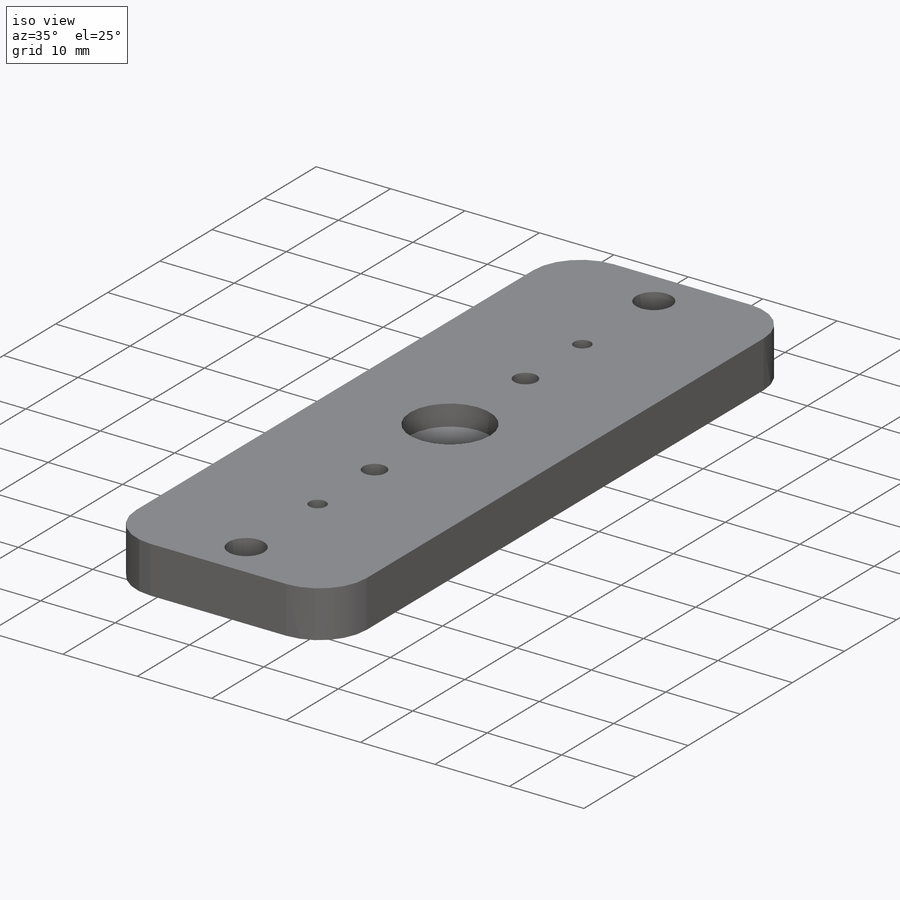
[diagram: iso view]
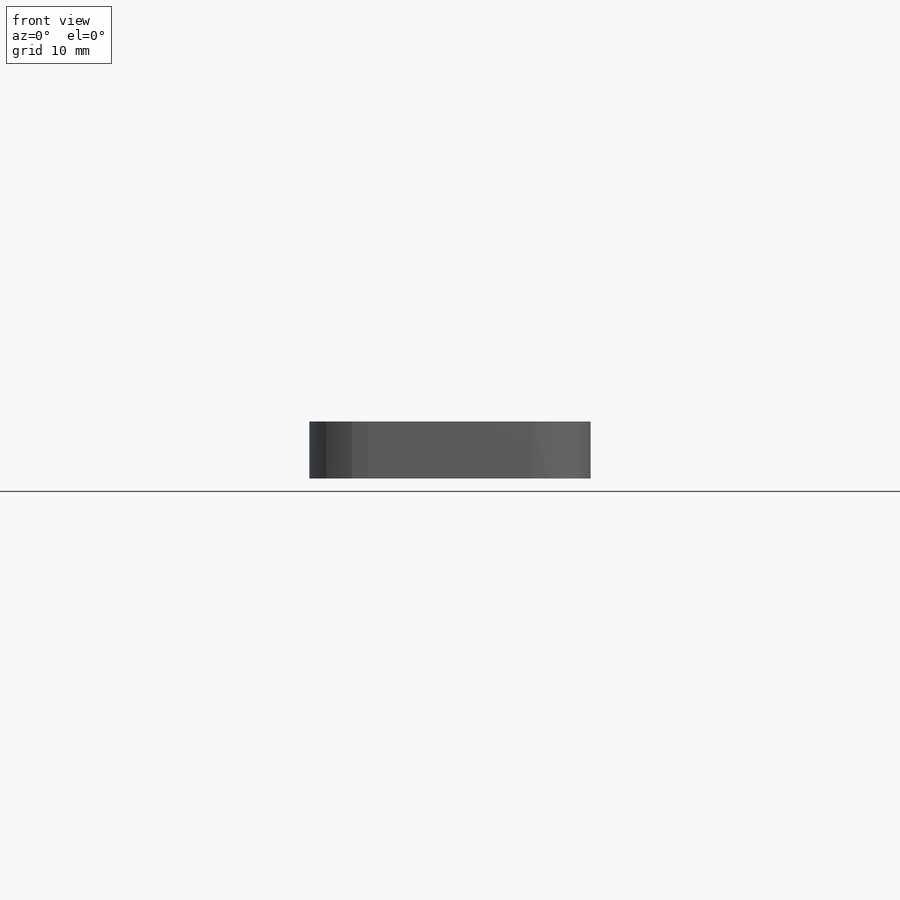
[diagram: front view]
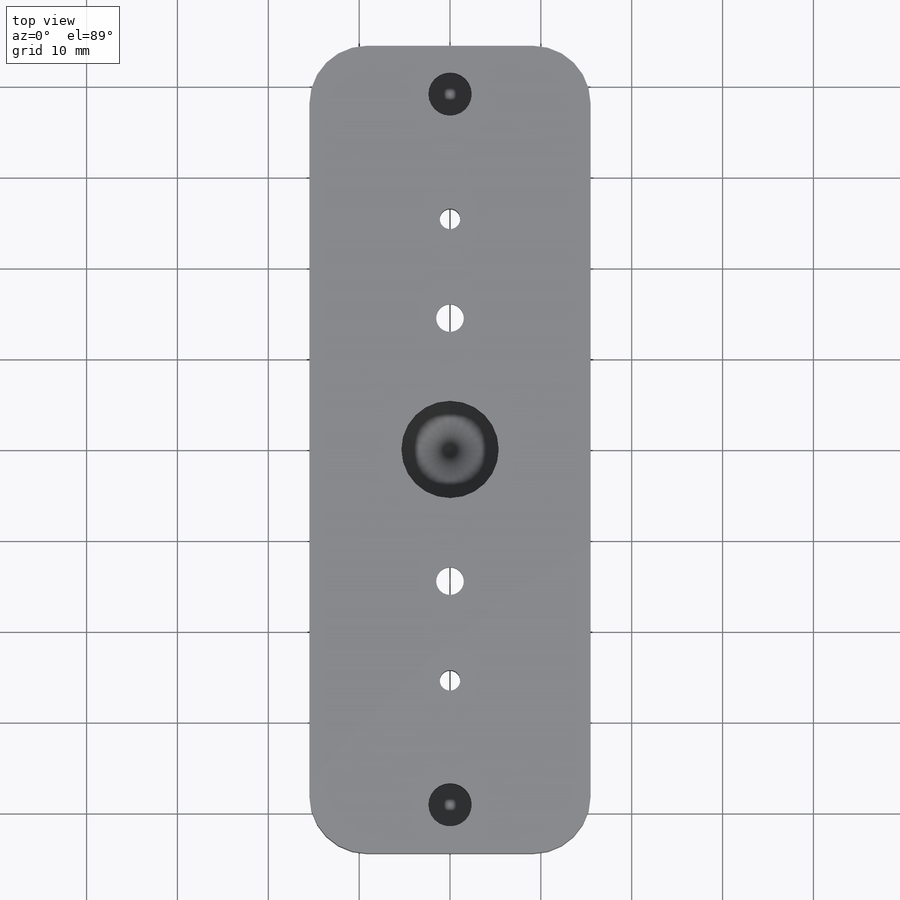
[diagram: top view]
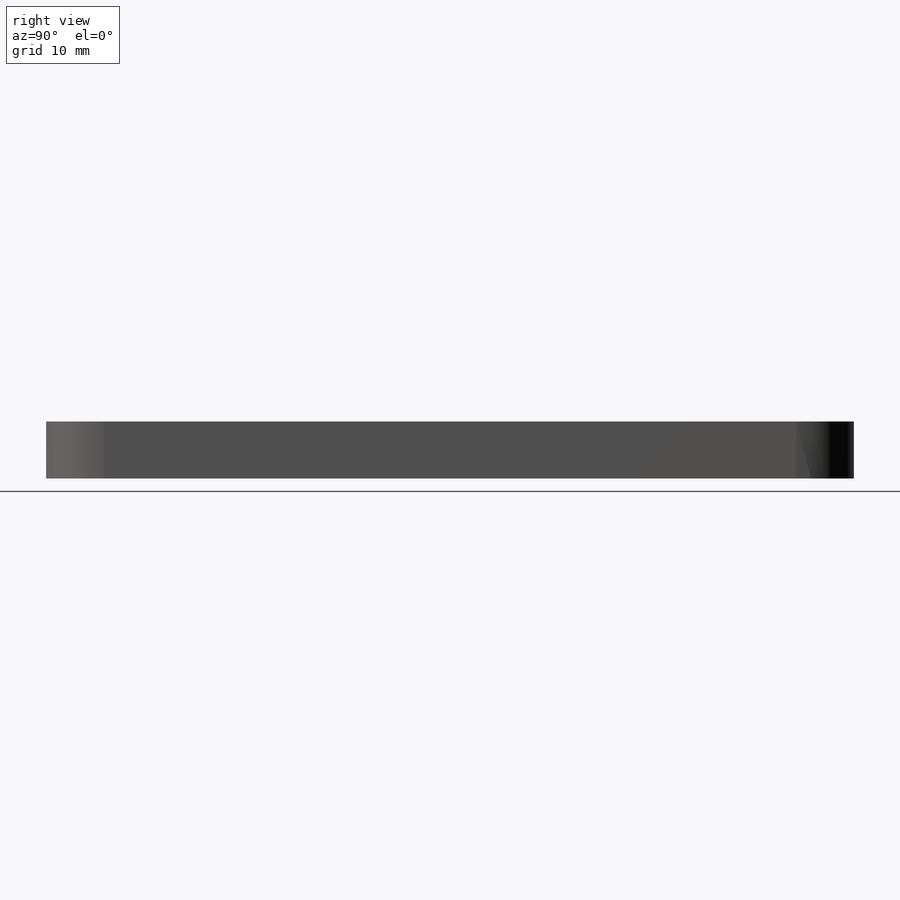
[diagram: right view]
SOLIDWORKS PART (.sldprt)
format: sldprt  version: not decoded by parser v0  size: 306,176 bytes
history: native  units: mm
features: sketch x10, cut_extrude x4, extrude x2, hole x2, material x1, fillet x1, thread x1 (+11 scaffold rows collapsed)
feature tree (32):
  scaffold x11  (default folders/planes/origin — collapsed)
  material  "Material <not specified>"
  sketch  "Sketch1"  dims[c1.D2=12.7mm c1.D1=20.0mm c2.D2=~78.87609mm c2.D1=88.9mm c3.D2=~30.95625mm]
  extrude  "Boss-Extrude1"  Depth=4.7625mm
  fillet  "Fillet1"  Radius=6.35mm
  sketch  "Sketch6"  dims[D1=3.048mm D2=14.478mm]
  cut_extrude  "Cut-Extrude1"  [1 undecoded]
  sketch  "Sketch7"  dims[D1=4.7625mm D2=5.334mm]
  cut_extrude  "Cut-Extrude2"  [1 undecoded]
  sketch  "Sketch9"
  extrude  "Boss-Extrude3"  Depth=1.524mm
  hole  "#4-40 Tapped Hole1"  Diameter=2.2606mm Depth=6.2865mm
  sketch  "Sketch5"  dims[D1=50.8mm]
  sketch  "Sketch4"  dims[hole-wizard template sketch: 60 standard entries collapsed; hole parameters kept: c18.Thru Tap Drill Depth=6.2865mm]
  sketch  "Sketch10"
  cut_extrude  "Cut-Extrude3"  [1 undecoded]
  sketch  "Sketch11"  dims[D1=6.35mm]
  cut_extrude  "Cut-Extrude4"  Depth=3.302mm
  hole  "1/2-13 Tapped Hole2"  Diameter=10.71626mm Depth=2.794mm
  sketch  "Sketch15"
  sketch  "Sketch14"  dims[hole-wizard template sketch: 47 standard entries collapsed; hole parameters kept: c15.Tap Drill Depth=2.794mm c15.D3=~14.816244mm c15.Drill Angle=118.0deg]
  thread  "Hole Thread2"  Diameter=2.794mm  [1 undecoded]
decode coverage: 14 of 20 modeling features carry decoded parameters
note: ~ marks probable driven/reference dimensions
note: 4 parameter values undecoded
summary: no parameter record found for 3 features
note: suppression state not decoded; provenance and decode notes live in map.json
